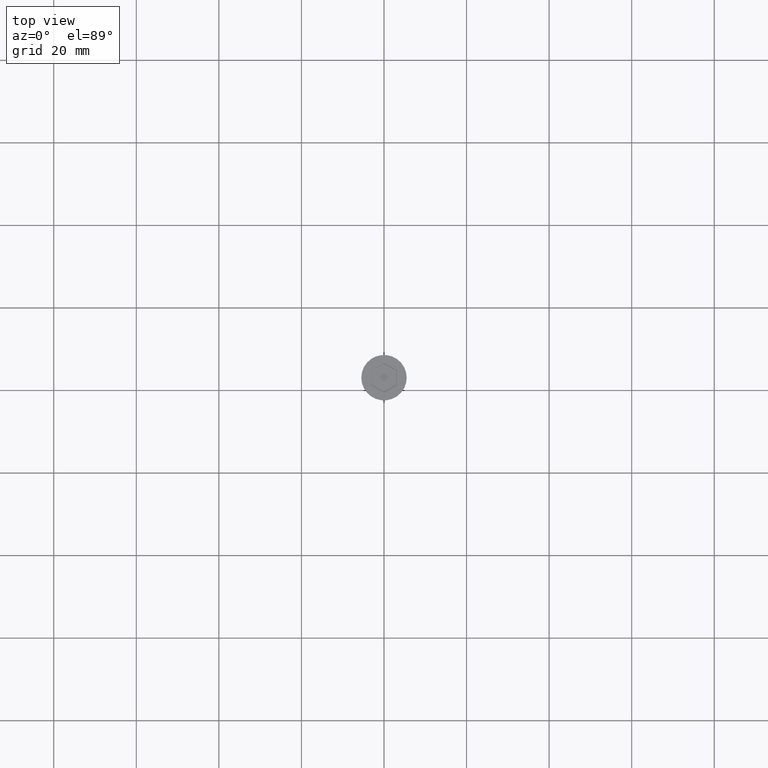
[diagram: clean part render]
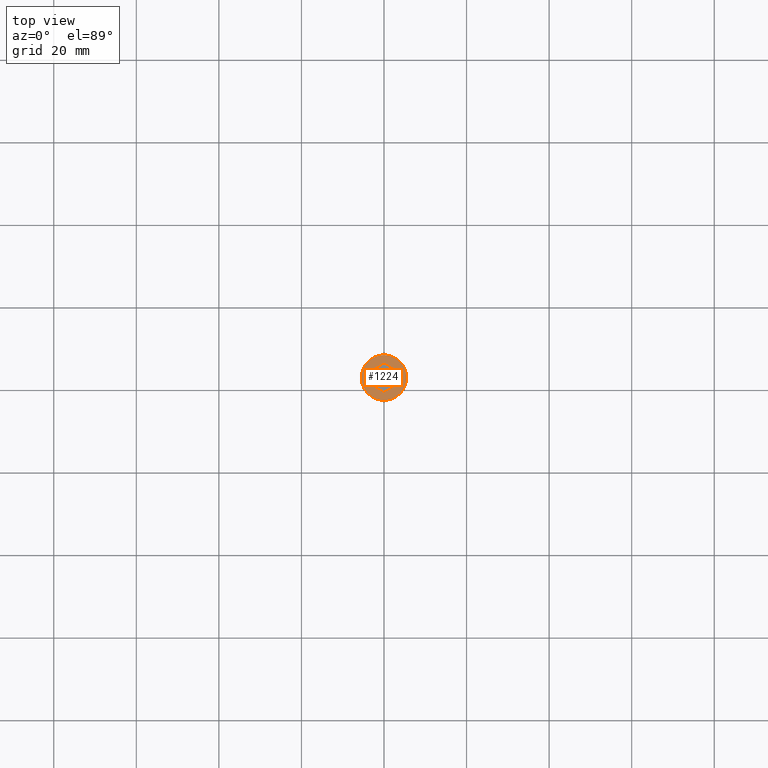
[diagram: same view with one face highlighted and labeled with its STEP entity id]
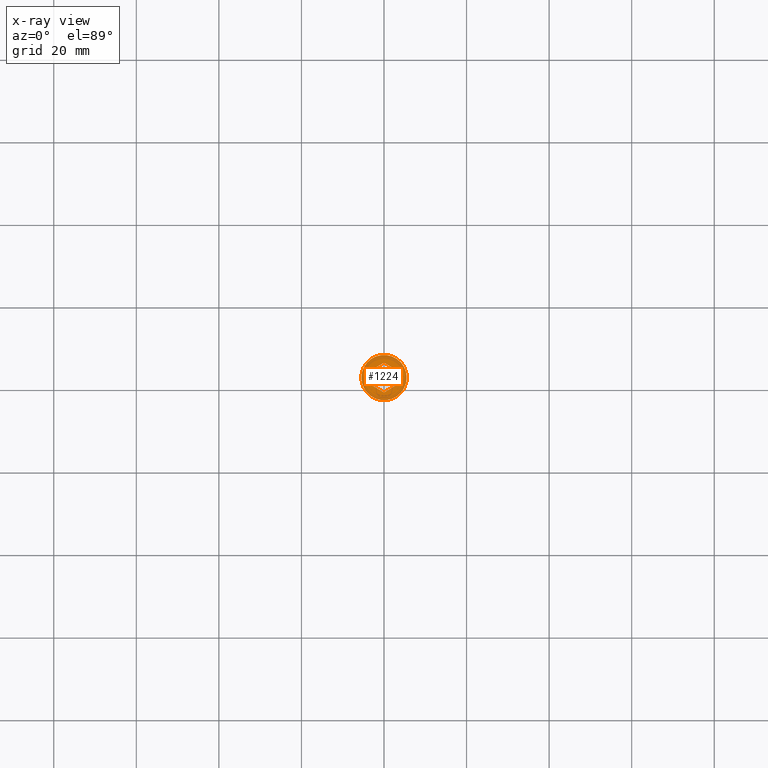
[diagram: x-ray of the same camera — body ghosted, the highlighted face saturated]
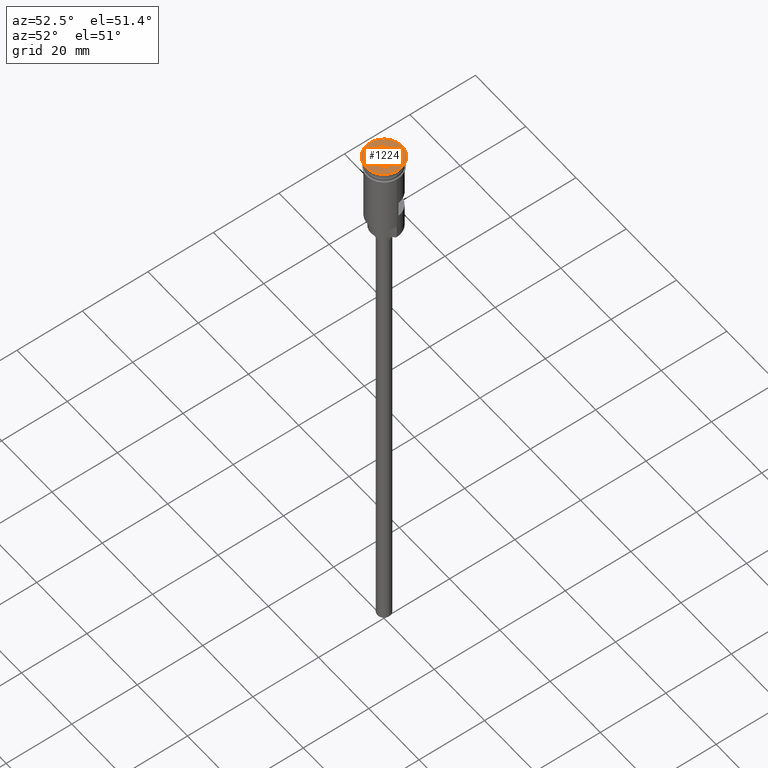
[diagram: same view with one face highlighted and labeled with its STEP entity id]
A machine part, top view. The second image highlights one B-rep face of the part: STEP entity #1224.
The next image is the same camera in x-ray: the body ghosted, the highlighted face saturated — about 0% of this face is hidden behind the body in this view.
A second angle (auxiliary view) of the same face is appended — the face is thin or edge-on in the first view.
In plain terms, the highlighted planar face has unit normal (0, -0, 1).
Its self-contained STEP definition (entity closure, byte-faithful):
#2 = CARTESIAN_POINT ( 'NONE',  ( 0.000000000000000000, 0.000000000000000000, 0.000000000000000000 ) ) ;
#41 = VECTOR ( 'NONE', #358, 1000.000000000000000 ) ;
#70 = VECTOR ( 'NONE', #196, 1000.000000000000114 ) ;
#88 = ORIENTED_EDGE ( 'NONE', *, *, #1558, .T. ) ;
#117 = FACE_OUTER_BOUND ( 'NONE', #283, .T. ) ;
#182 = ORIENTED_EDGE ( 'NONE', *, *, #225, .T. ) ;
#196 = DIRECTION ( 'NONE',  ( 0.8660254037844388186, -0.4999999999999997780, 0.000000000000000000 ) ) ;
#225 = EDGE_CURVE ( 'NONE', #286, #1041, #1188, .T. ) ;
#264 = CARTESIAN_POINT ( 'NONE',  ( -3.099999999999983213, 1.789785834487829908, 0.000000000000000000 ) ) ;
#278 = VERTEX_POINT ( 'NONE', #1382 ) ;
#279 = CARTESIAN_POINT ( 'NONE',  ( 3.099999999999982769, -1.732050807568876083, 0.000000000000000000 ) ) ;
#283 = EDGE_LOOP ( 'NONE', ( #1059, #974 ) ) ;
#286 = VERTEX_POINT ( 'NONE', #264 ) ;
#298 = CARTESIAN_POINT ( 'NONE',  ( 0.000000000000000000, 0.000000000000000000, 0.000000000000000000 ) ) ;
#323 = LINE ( 'NONE', #1179, #1329 ) ;
#326 = CARTESIAN_POINT ( 'NONE',  ( 3.049999999999991829, 1.818653347947307708, 0.000000000000000000 ) ) ;
#358 = DIRECTION ( 'NONE',  ( -0.8660254037844387076, 0.4999999999999998335, 0.000000000000000000 ) ) ;
#439 = DIRECTION ( 'NONE',  ( 0.000000000000000000, 1.000000000000000000, 0.000000000000000000 ) ) ;
#443 = EDGE_CURVE ( 'NONE', #459, #1130, #1485, .T. ) ;
#459 = VERTEX_POINT ( 'NONE', #1158 ) ;
#478 = VECTOR ( 'NONE', #561, 1000.000000000000000 ) ;
#490 = LINE ( 'NONE', #1486, #41 ) ;
#506 = LINE ( 'NONE', #1492, #752 ) ;
#510 = ORIENTED_EDGE ( 'NONE', *, *, #1077, .T. ) ;
#528 = DIRECTION ( 'NONE',  ( 1.000000000000000000, 0.000000000000000000, 0.000000000000000000 ) ) ;
#561 = DIRECTION ( 'NONE',  ( -1.251928832280966188E-16, -1.000000000000000000, 0.000000000000000000 ) ) ;
#564 = CARTESIAN_POINT ( 'NONE',  ( 6.103073414120078086E-16, 3.579571668975660259, 0.000000000000000000 ) ) ;
#573 = AXIS2_PLACEMENT_3D ( 'NONE', #1476, #917, #1400 ) ;
#602 = EDGE_CURVE ( 'NONE', #278, #286, #323, .T. ) ;
#604 = PLANE ( 'NONE',  #573 ) ;
#609 = CARTESIAN_POINT ( 'NONE',  ( -1.958864205101993824E-16, -3.579571668975658927, 0.000000000000000000 ) ) ;
#716 = VERTEX_POINT ( 'NONE', #1597 ) ;
#752 = VECTOR ( 'NONE', #879, 1000.000000000000114 ) ;
#776 = AXIS2_PLACEMENT_3D ( 'NONE', #298, #1395, #528 ) ;
#869 = VERTEX_POINT ( 'NONE', #1258 ) ;
#879 = DIRECTION ( 'NONE',  ( -0.8660254037844385966, -0.5000000000000001110, 0.000000000000000000 ) ) ;
#917 = DIRECTION ( 'NONE',  ( 0.000000000000000000, -0.000000000000000000, 1.000000000000000000 ) ) ;
#930 = VECTOR ( 'NONE', #1491, 1000.000000000000000 ) ;
#974 = ORIENTED_EDGE ( 'NONE', *, *, #443, .T. ) ;
#1041 = VERTEX_POINT ( 'NONE', #564 ) ;
#1045 = LINE ( 'NONE', #279, #478 ) ;
#1059 = ORIENTED_EDGE ( 'NONE', *, *, #1196, .T. ) ;
#1062 = CARTESIAN_POINT ( 'NONE',  ( -0.04999999999999187039, 3.550704155516183125, 0.000000000000000000 ) ) ;
#1077 = EDGE_CURVE ( 'NONE', #1556, #278, #490, .T. ) ;
#1092 = DIRECTION ( 'NONE',  ( 1.000000000000000000, 0.000000000000000000, 0.000000000000000000 ) ) ;
#1103 = DIRECTION ( 'NONE',  ( -0.000000000000000000, -0.000000000000000000, 1.000000000000000000 ) ) ;
#1127 = ORIENTED_EDGE ( 'NONE', *, *, #602, .T. ) ;
#1130 = VERTEX_POINT ( 'NONE', #1587 ) ;
#1145 = EDGE_LOOP ( 'NONE', ( #1127, #182, #1403, #1477, #88, #510 ) ) ;
#1158 = CARTESIAN_POINT ( 'NONE',  ( -5.500000000000000000, 6.735557395310442023E-16, 0.000000000000000000 ) ) ;
#1167 = CIRCLE ( 'NONE', #1358, 5.500000000000000000 ) ;
#1179 = CARTESIAN_POINT ( 'NONE',  ( -3.099999999999983213, 1.732050807568876971, 0.000000000000000000 ) ) ;
#1188 = LINE ( 'NONE', #1062, #930 ) ;
#1196 = EDGE_CURVE ( 'NONE', #1130, #459, #1167, .T. ) ;
#1214 = FACE_BOUND ( 'NONE', #1145, .T. ) ;
#1224 = ADVANCED_FACE ( 'NONE', ( #1214, #117 ), #604, .T. ) ;
#1238 = EDGE_CURVE ( 'NONE', #869, #716, #1045, .T. ) ;
#1258 = CARTESIAN_POINT ( 'NONE',  ( 3.099999999999983213, 1.789785834487831462, 0.000000000000000000 ) ) ;
#1312 = LINE ( 'NONE', #326, #70 ) ;
#1329 = VECTOR ( 'NONE', #439, 1000.000000000000000 ) ;
#1358 = AXIS2_PLACEMENT_3D ( 'NONE', #2, #1103, #1092 ) ;
#1382 = CARTESIAN_POINT ( 'NONE',  ( -3.099999999999983213, -1.789785834487829241, 0.000000000000000000 ) ) ;
#1395 = DIRECTION ( 'NONE',  ( -0.000000000000000000, -0.000000000000000000, 1.000000000000000000 ) ) ;
#1400 = DIRECTION ( 'NONE',  ( 1.000000000000000000, 0.000000000000000000, 0.000000000000000000 ) ) ;
#1403 = ORIENTED_EDGE ( 'NONE', *, *, #1458, .T. ) ;
#1458 = EDGE_CURVE ( 'NONE', #1041, #869, #1312, .T. ) ;
#1476 = CARTESIAN_POINT ( 'NONE',  ( 0.000000000000000000, 0.000000000000000000, 0.000000000000000000 ) ) ;
#1477 = ORIENTED_EDGE ( 'NONE', *, *, #1238, .T. ) ;
#1485 = CIRCLE ( 'NONE', #776, 5.500000000000000000 ) ;
#1486 = CARTESIAN_POINT ( 'NONE',  ( -3.049999999999991385, -1.818653347947305932, 0.000000000000000000 ) ) ;
#1491 = DIRECTION ( 'NONE',  ( 0.8660254037844387076, 0.4999999999999998890, 0.000000000000000000 ) ) ;
#1492 = CARTESIAN_POINT ( 'NONE',  ( 0.04999999999999141936, -3.550704155516182237, 0.000000000000000000 ) ) ;
#1556 = VERTEX_POINT ( 'NONE', #609 ) ;
#1558 = EDGE_CURVE ( 'NONE', #716, #1556, #506, .T. ) ;
#1587 = CARTESIAN_POINT ( 'NONE',  ( 5.500000000000000000, 0.000000000000000000, 0.000000000000000000 ) ) ;
#1597 = CARTESIAN_POINT ( 'NONE',  ( 3.099999999999982769, -1.789785834487828353, 0.000000000000000000 ) ) ;